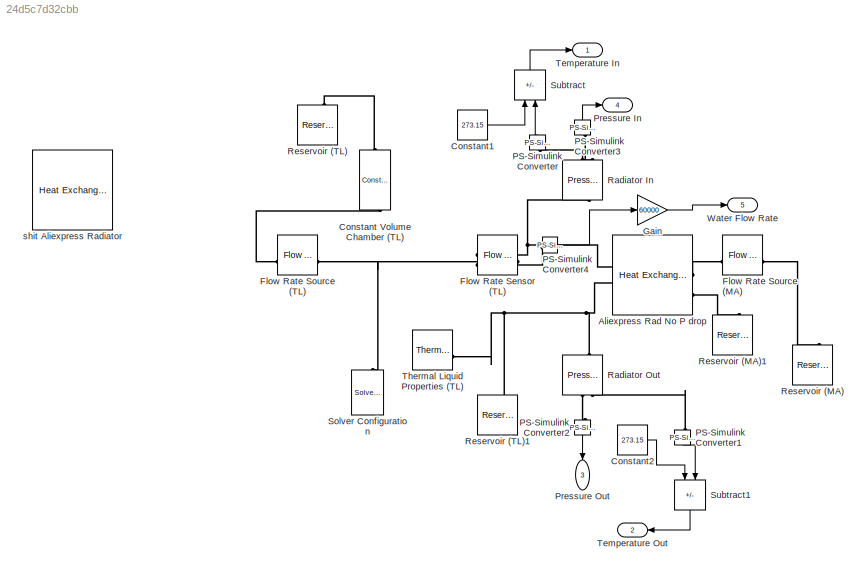
MODEL slx_24d5c7d32cbb
KIND model
CONFIG AbsTol = auto
CONFIG EnableMultiTasking = off
CONFIG FixedStep = auto
CONFIG MaxStep = auto
CONFIG MinStep = auto
CONFIG RelTol = 1e-3
CONFIG SampleTimeConstraint = Unconstrained
CONFIG SolverName = VariableStepAuto
CONFIG StartTime = 0.0
CONFIG StopTime = 300
BLOCK [Reference] Aliexpress Rad No P drop  REF=SimscapeFluids_lib/Heat Exchangers/Thermal Liquid -
Moist Air/Heat Exchanger
(TL-MA)
  SourceBlock = SimscapeFluids_lib/Heat Exchangers/Thermal Liquid -\nMoist Air/Heat Exchanger\n(TL-MA)
  SourceType = Heat Exchanger\n(TL-MA)
BLOCK [Reference] Constant Volume Chamber (TL)  REF=fl_lib/Thermal Liquid/Elements/Constant Volume
Chamber (TL)
  NameLocation = right
  SourceBlock = fl_lib/Thermal Liquid/Elements/Constant Volume\nChamber (TL)
  SourceType = Constant Volume\nChamber (TL)
BLOCK [Constant] Constant1
  Value = 273.15
BLOCK [Constant] Constant2
  NameLocation = top
  Value = 273.15
BLOCK [Reference] Flow Rate Sensor (TL)  REF=fl_lib/Thermal Liquid/Sensors/Flow Rate Sensor
(TL)
  SourceBlock = fl_lib/Thermal Liquid/Sensors/Flow Rate Sensor\n(TL)
  SourceType = Flow Rate Sensor\n(TL)
BLOCK [Reference] Flow Rate Source (MA)  REF=fl_lib/Moist Air/Sources/Flow Rate Source
(MA)
  SourceBlock = fl_lib/Moist Air/Sources/Flow Rate Source\n(MA)
  SourceType = Flow Rate Source\n(MA)
BLOCK [Reference] Flow Rate Source (TL)  REF=fl_lib/Thermal Liquid/Sources/Flow Rate Source
(TL)
  SourceBlock = fl_lib/Thermal Liquid/Sources/Flow Rate Source\n(TL)
  SourceType = Flow Rate Source\n(TL)
BLOCK [Gain] Gain
  Gain = 60000
BLOCK [Reference] PS-Simulink Converter  REF=nesl_utility/PS-Simulink
Converter
  NameLocation = right
  SourceBlock = nesl_utility/PS-Simulink\nConverter
  SourceType = PS-Simulink\nConverter
BLOCK [Reference] PS-Simulink Converter1  REF=nesl_utility/PS-Simulink
Converter
  NameLocation = left
  SourceBlock = nesl_utility/PS-Simulink\nConverter
  SourceType = PS-Simulink\nConverter
BLOCK [Reference] PS-Simulink Converter2  REF=nesl_utility/PS-Simulink
Converter
  NameLocation = left
  SourceBlock = nesl_utility/PS-Simulink\nConverter
  SourceType = PS-Simulink\nConverter
BLOCK [Reference] PS-Simulink Converter3  REF=nesl_utility/PS-Simulink
Converter
  NameLocation = right
  SourceBlock = nesl_utility/PS-Simulink\nConverter
  SourceType = PS-Simulink\nConverter
BLOCK [Reference] PS-Simulink Converter4  REF=nesl_utility/PS-Simulink
Converter
  SourceBlock = nesl_utility/PS-Simulink\nConverter
  SourceType = PS-Simulink\nConverter
BLOCK [Outport] Pressure In
  Port = 4
BLOCK [Outport] Pressure Out
  NameLocation = left
  Port = 3
BLOCK [Reference] Radiator In  REF=fl_lib/Thermal Liquid/Sensors/Pressure &
Temperature Sensor
(TL)
  NameLocation = right
  SourceBlock = fl_lib/Thermal Liquid/Sensors/Pressure &\nTemperature Sensor\n(TL)
  SourceType = Pressure &\nTemperature Sensor\n(TL)
BLOCK [Reference] Radiator Out  REF=fl_lib/Thermal Liquid/Sensors/Pressure &
Temperature Sensor
(TL)
  NameLocation = left
  SourceBlock = fl_lib/Thermal Liquid/Sensors/Pressure &\nTemperature Sensor\n(TL)
  SourceType = Pressure &\nTemperature Sensor\n(TL)
BLOCK [Reference] Reservoir (MA)  REF=fl_lib/Moist Air/Elements/Reservoir (MA)
  NameLocation = right
  SourceBlock = fl_lib/Moist Air/Elements/Reservoir (MA)
  SourceType = Reservoir (MA)
BLOCK [Reference] Reservoir (MA)1  REF=fl_lib/Moist Air/Elements/Reservoir (MA)
  NameLocation = right
  SourceBlock = fl_lib/Moist Air/Elements/Reservoir (MA)
  SourceType = Reservoir (MA)
BLOCK [Reference] Reservoir (TL)  REF=fl_lib/Thermal Liquid/Elements/Reservoir (TL)
  NameLocation = right
  SourceBlock = fl_lib/Thermal Liquid/Elements/Reservoir (TL)
  SourceType = Reservoir (TL)
BLOCK [Reference] Reservoir (TL)1  REF=fl_lib/Thermal Liquid/Elements/Reservoir (TL)
  NameLocation = right
  SourceBlock = fl_lib/Thermal Liquid/Elements/Reservoir (TL)
  SourceType = Reservoir (TL)
BLOCK [Reference] Solver Configuration  REF=nesl_utility/Solver
Configuration
  NameLocation = right
  SourceBlock = nesl_utility/Solver\nConfiguration
  SourceType = Solver\nConfiguration
BLOCK [Sum] Subtract
  IconShape = rectangular
  Inputs = -+
  NameLocation = right
BLOCK [Sum] Subtract1
  IconShape = rectangular
  Inputs = -+
  NameLocation = left
BLOCK [Outport] Temperature In
BLOCK [Outport] Temperature Out
  NameLocation = top
  Port = 2
BLOCK [Reference] Thermal Liquid Properties (TL)  REF=SimscapeFluids_lib/Thermal Liquid/Utilities/Thermal Liquid
Properties (TL)
  SourceBlock = SimscapeFluids_lib/Thermal Liquid/Utilities/Thermal Liquid\nProperties (TL)
  SourceType = Thermal Liquid\nProperties (TL)
BLOCK [Outport] Water Flow Rate
  Port = 5
BLOCK [Reference] shit Aliexpress Radiator  REF=SimscapeFluids_lib/Heat Exchangers/Thermal Liquid -
Moist Air/Heat Exchanger
(TL-MA)
  Commented = on
  SourceBlock = SimscapeFluids_lib/Heat Exchangers/Thermal Liquid -\nMoist Air/Heat Exchanger\n(TL-MA)
  SourceType = Heat Exchanger\n(TL-MA)
LINE Constant1:1 -> Subtract:1
LINE Constant2:1 -> Subtract1:1
LINE Gain:1 -> Water Flow Rate:1
LINE PS-Simulink Converter1:1 -> Subtract1:2
LINE PS-Simulink Converter2:1 -> Pressure Out:1
LINE PS-Simulink Converter3:1 -> Pressure In:1
LINE PS-Simulink Converter4:1 -> Gain:1
LINE PS-Simulink Converter:1 -> Subtract:2
LINE Subtract1:1 -> Temperature Out:1
LINE Subtract:1 -> Temperature In:1
PNET net1: Aliexpress Rad No P drop:LConn1 -- Flow Rate Sensor (TL):RConn1 -- Radiator In:LConn1
PNET net2: Aliexpress Rad No P drop:LConn2 -- Radiator Out:LConn1 -- Reservoir (TL)1:LConn1 -- Thermal Liquid Properties (TL):RConn1
PLINE Aliexpress Rad No P drop:RConn1 -- Flow Rate Source (MA):RConn1
PLINE Aliexpress Rad No P drop:RConn2 -- Reservoir (MA)1:LConn1
PLINE Constant Volume Chamber (TL):LConn1 -- Reservoir (TL):LConn1
PLINE Constant Volume Chamber (TL):RConn1 -- Flow Rate Source (TL):LConn1
PNET net3: Flow Rate Sensor (TL):LConn1 -- Flow Rate Source (TL):RConn1 -- Solver Configuration:RConn1
PLINE Flow Rate Sensor (TL):RConn2 -- PS-Simulink Converter4:LConn1
PLINE Flow Rate Source (MA):LConn1 -- Reservoir (MA):LConn1
PLINE PS-Simulink Converter1:LConn1 -- Radiator Out:RConn2
PLINE PS-Simulink Converter2:LConn1 -- Radiator Out:RConn1
PLINE PS-Simulink Converter3:LConn1 -- Radiator In:RConn1
PLINE PS-Simulink Converter:LConn1 -- Radiator In:RConn2
note: PNET lines group multi-terminal physical nets as a canonical sorted terminal list (undirected conserving connections); 2-terminal nets keep the pairwise PLINE form
